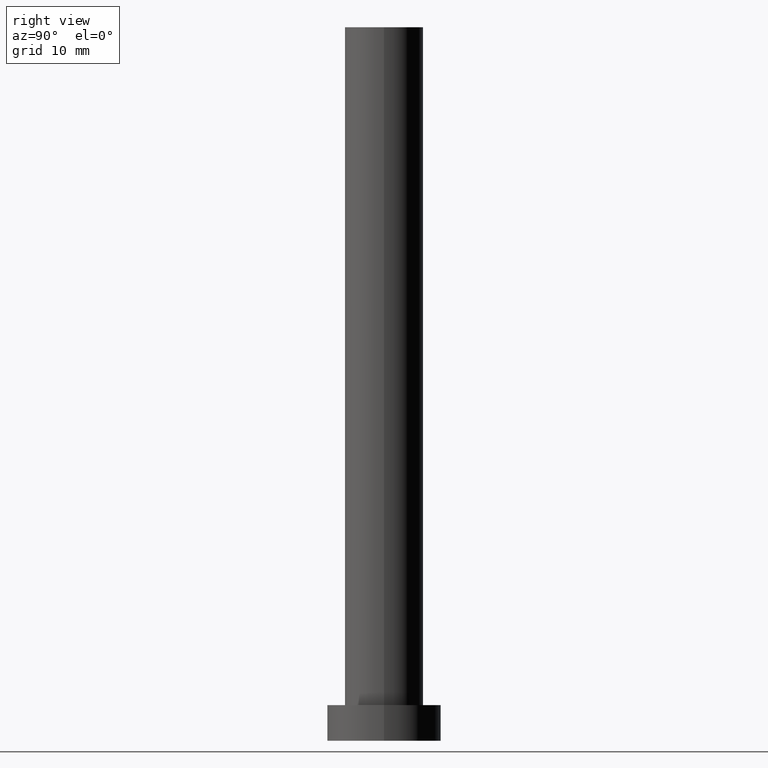
[diagram: clean part render]
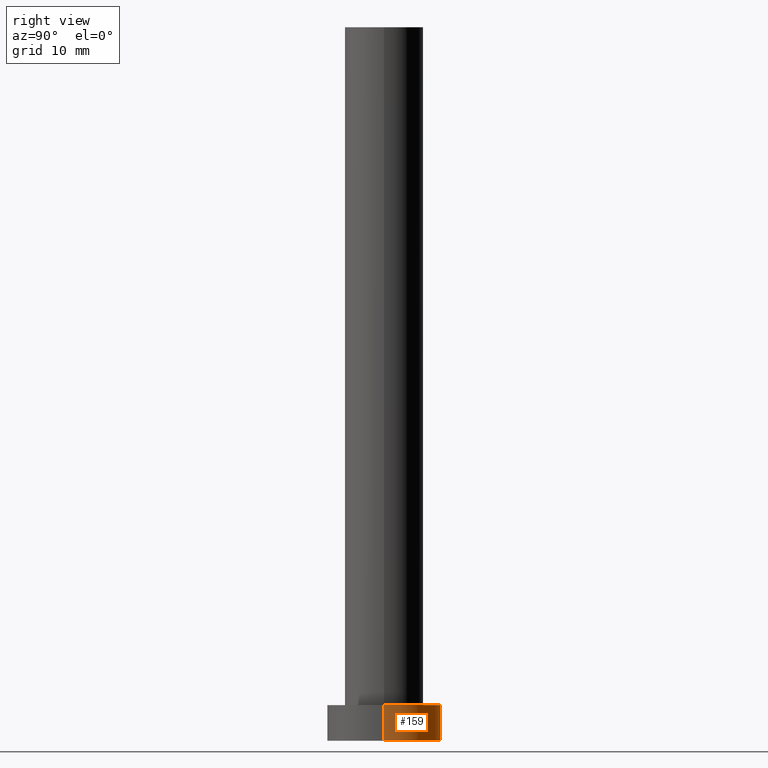
[diagram: same view with one face highlighted and labeled with its STEP entity id]
A machine part, right view. The second image highlights one B-rep face of the part: STEP entity #159.
In plain terms, the highlighted cylindrical surface (partial cylindrical patch) has radius 8 mm, axis along (-0, -0, -1).
Its self-contained STEP definition (entity closure, byte-faithful):
#6 = CARTESIAN_POINT ( 'NONE',  ( 8.000000000000000000, 9.797174393178825657E-16, 0.000000000000000000 ) ) ;
#10 = CARTESIAN_POINT ( 'NONE',  ( 0.000000000000000000, 0.000000000000000000, 5.000000000000000000 ) ) ;
#14 = CARTESIAN_POINT ( 'NONE',  ( -8.000000000000000000, 0.000000000000000000, 5.000000000000000000 ) ) ;
#15 = DIRECTION ( 'NONE',  ( -0.000000000000000000, -0.000000000000000000, -1.000000000000000000 ) ) ;
#25 = FACE_OUTER_BOUND ( 'NONE', #102, .T. ) ;
#26 = ORIENTED_EDGE ( 'NONE', *, *, #117, .T. ) ;
#33 = DIRECTION ( 'NONE',  ( -0.000000000000000000, -0.000000000000000000, -1.000000000000000000 ) ) ;
#35 = VECTOR ( 'NONE', #47, 1000.000000000000000 ) ;
#40 = CARTESIAN_POINT ( 'NONE',  ( 0.000000000000000000, 0.000000000000000000, 0.000000000000000000 ) ) ;
#42 = VECTOR ( 'NONE', #15, 1000.000000000000000 ) ;
#43 = ORIENTED_EDGE ( 'NONE', *, *, #103, .T. ) ;
#47 = DIRECTION ( 'NONE',  ( -0.000000000000000000, -0.000000000000000000, -1.000000000000000000 ) ) ;
#58 = CARTESIAN_POINT ( 'NONE',  ( 8.000000000000000000, 9.797174393178825657E-16, 5.000000000000000000 ) ) ;
#61 = VERTEX_POINT ( 'NONE', #14 ) ;
#65 = DIRECTION ( 'NONE',  ( 1.000000000000000000, 0.000000000000000000, 0.000000000000000000 ) ) ;
#67 = DIRECTION ( 'NONE',  ( 0.000000000000000000, 0.000000000000000000, 1.000000000000000000 ) ) ;
#80 = VERTEX_POINT ( 'NONE', #239 ) ;
#82 = CYLINDRICAL_SURFACE ( 'NONE', #255, 8.000000000000000000 ) ;
#88 = VERTEX_POINT ( 'NONE', #221 ) ;
#92 = DIRECTION ( 'NONE',  ( 0.000000000000000000, 0.000000000000000000, 1.000000000000000000 ) ) ;
#101 = DIRECTION ( 'NONE',  ( 1.000000000000000000, 0.000000000000000000, 0.000000000000000000 ) ) ;
#102 = EDGE_LOOP ( 'NONE', ( #226, #26, #43, #227 ) ) ;
#103 = EDGE_CURVE ( 'NONE', #233, #80, #228, .T. ) ;
#108 = CARTESIAN_POINT ( 'NONE',  ( -8.000000000000000000, 0.000000000000000000, 5.000000000000000000 ) ) ;
#109 = CIRCLE ( 'NONE', #174, 8.000000000000000000 ) ;
#117 = EDGE_CURVE ( 'NONE', #88, #233, #222, .T. ) ;
#139 = EDGE_CURVE ( 'NONE', #88, #61, #109, .T. ) ;
#142 = DIRECTION ( 'NONE',  ( -1.000000000000000000, 0.000000000000000000, 0.000000000000000000 ) ) ;
#152 = EDGE_CURVE ( 'NONE', #61, #80, #205, .T. ) ;
#159 = ADVANCED_FACE ( 'NONE', ( #25 ), #82, .T. ) ;
#160 = AXIS2_PLACEMENT_3D ( 'NONE', #40, #92, #101 ) ;
#174 = AXIS2_PLACEMENT_3D ( 'NONE', #200, #67, #65 ) ;
#200 = CARTESIAN_POINT ( 'NONE',  ( 0.000000000000000000, 0.000000000000000000, 5.000000000000000000 ) ) ;
#205 = LINE ( 'NONE', #108, #35 ) ;
#221 = CARTESIAN_POINT ( 'NONE',  ( 8.000000000000000000, 9.797174393178825657E-16, 5.000000000000000000 ) ) ;
#222 = LINE ( 'NONE', #58, #42 ) ;
#226 = ORIENTED_EDGE ( 'NONE', *, *, #139, .F. ) ;
#227 = ORIENTED_EDGE ( 'NONE', *, *, #152, .F. ) ;
#228 = CIRCLE ( 'NONE', #160, 8.000000000000000000 ) ;
#233 = VERTEX_POINT ( 'NONE', #6 ) ;
#239 = CARTESIAN_POINT ( 'NONE',  ( -8.000000000000000000, 0.000000000000000000, 0.000000000000000000 ) ) ;
#255 = AXIS2_PLACEMENT_3D ( 'NONE', #10, #33, #142 ) ;